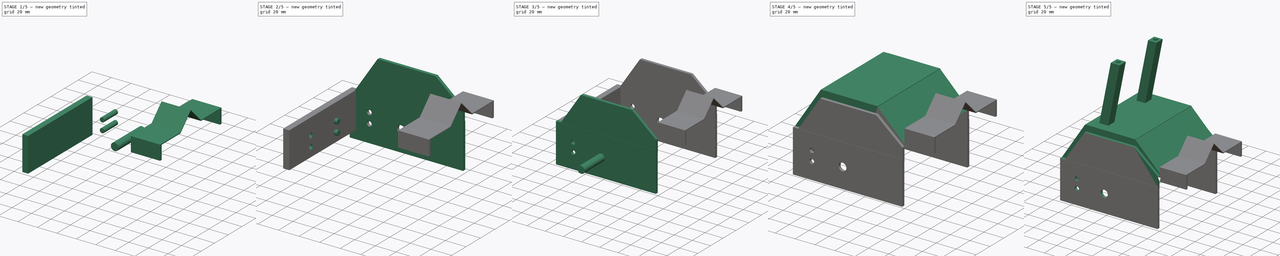
[diagram: build sequence overview — one tinted view per stage of 5, left to right]
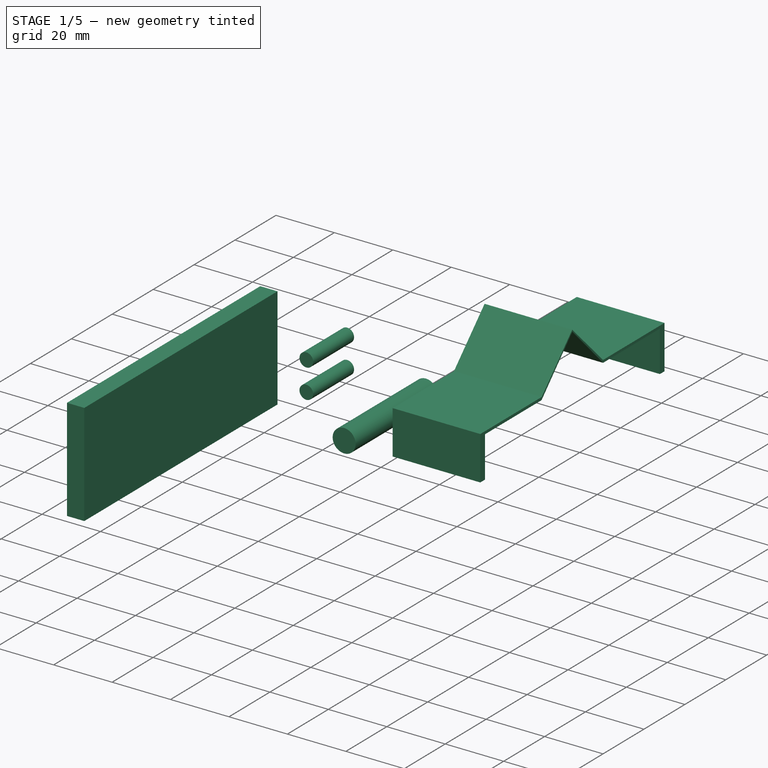
[diagram: stage 1 of 5 — iso view after this stage's code; geometry added in this stage tinted green]
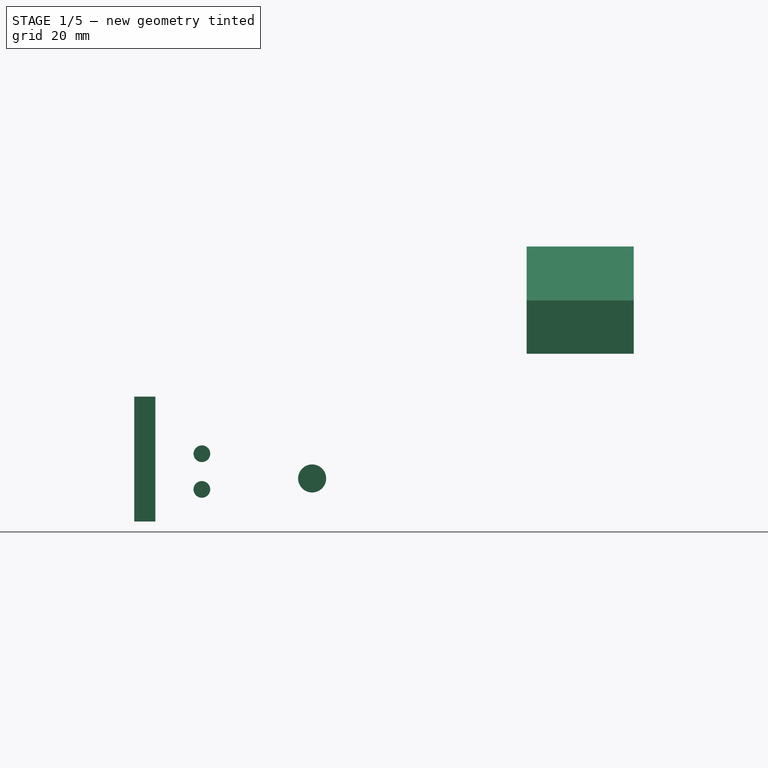
[diagram: stage 1 of 5 — front view after this stage's code; geometry added in this stage tinted green]
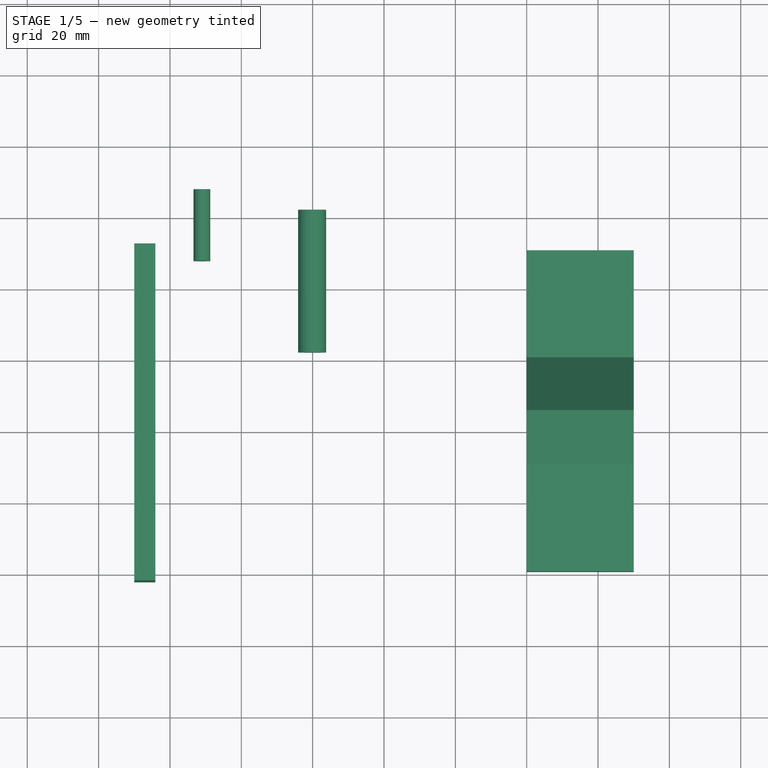
[diagram: stage 1 of 5 — top view after this stage's code; geometry added in this stage tinted green]
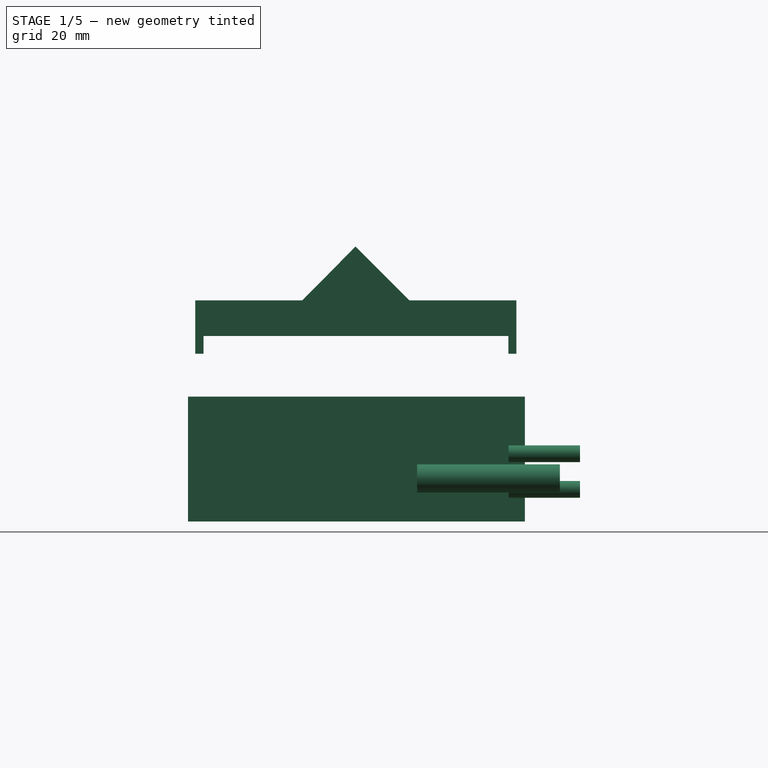
[diagram: stage 1 of 5 — right view after this stage's code; geometry added in this stage tinted green]
FCSTD DOCUMENT  (FreeCAD 0.20R29410 (Git))
Label: Carcasa Trasera
License: Creative Commons Attribution-ShareAlike
LicenseURL: http://creativecommons.org/licenses/by-sa/4.0/
objects: Part::Extrusion×21, Sketcher::SketchObject×20, Part::MultiFuse×10, Part::Cut×10
note: 61 computed .brp shape members not serialized (recipe doc carries the construction recipe); baked Part::Feature solids carry a one-line shape summary decoded from their .brp

FEATURE [Sketcher::SketchObject] Sketch134
  FullyConstrained = false
  MapMode = 5
  Placement = pos=(0,0,8) rot=(0,0,1;0rad)
  sketch-geometry (4):
    g0: LineSegment StartX=-110 StartY=92.3912 StartZ=0 EndX=-110 EndY=-2.04587 EndZ=0
    g1: LineSegment StartX=-110 StartY=-2.04587 StartZ=0 EndX=-104.089 EndY=-2.04587 EndZ=0
    g2: LineSegment StartX=-104.089 StartY=-2.04587 StartZ=0 EndX=-104.089 EndY=92.3912 EndZ=0
    g3: LineSegment StartX=-104.089 StartY=92.3912 StartZ=0 EndX=-110 EndY=92.3912 EndZ=0
  constraints (7):
    c: Vertical(g0)
    c: Coincident(g0,g1)
    c: Coincident(g1,g2)
    c: Vertical(g2)
    c: Coincident(g2,g3)
    c: Coincident(g3,g0)
    c: Horizontal(g3)
FEATURE [Part::Extrusion] Extrude156
  Base = -> Sketch134
  Dir = (0,0,1)
  DirMode = 2
  FaceMakerClass = Part::FaceMakerBullseye
  LengthFwd = 35
  LengthRev = 0
  Solid = true
  Symmetric = false
FEATURE [Sketcher::SketchObject] Sketch143
  FullyConstrained = false
  MapMode = 5
  Placement = pos=(-98,-107,4e-16) rot=(0.57735,-0.57735,-0.57735;2.0944rad)
  sketch-geometry (4):
    g0: LineSegment StartX=-140.012 StartY=30 StartZ=0 EndX=-130 EndY=30 EndZ=0
    g1: Circle CenterX=-135.006 CenterY=30 CenterZ=0 NormalX=0 NormalY=0 NormalZ=1 AngleXU=0 Radius=2.34
    g2: LineSegment StartX=-140 StartY=20 StartZ=0 EndX=-130.017 EndY=20 EndZ=0
    g3: Circle CenterX=-135.008 CenterY=20 CenterZ=0 NormalX=0 NormalY=0 NormalZ=1 AngleXU=0 Radius=2.34
  constraints (6):
    c: Horizontal(g0)
    c: Symmetric(g0,g0,g1)
    c: Horizontal(g2)
    c: Symmetric(g2,g2,g3)
    c: Equal(g1,g3)
    c: Diameter(g3) = 4.68
FEATURE [Part::Extrusion] Extrude167  label="Tornillos040"
  Base = -> Sketch143
  Dir = (-1,2e-16,2e-16)
  DirMode = 2
  FaceMakerClass = Part::FaceMakerBullseye
  LengthFwd = 20
  LengthRev = 0
  Placement = pos=(-63.05,205.85,-3) rot=(0,0,1;1.5708rad)
  Solid = true
  Symmetric = false
FEATURE [Sketcher::SketchObject] Sketch147
  FullyConstrained = false
  MapMode = 5
  Placement = pos=(-4e-15,-17.4,11) rot=(0,0.707107,0.707107;3.14159rad)
  sketch-geometry (1):
    g0: Circle CenterX=0 CenterY=-11.0274 CenterZ=0 NormalX=0 NormalY=0 NormalZ=1 AngleXU=0 Radius=3.93177
FEATURE [Part::Extrusion] Extrude169  label="Pieza Clave motor010"
  Base = -> Sketch147
  Dir = (0,1,-2e-16)
  DirMode = 2
  FaceMakerClass = Part::FaceMakerBullseye
  LengthFwd = 40
  LengthRev = 0
  Placement = pos=(-60.175,79.6,20.0694) rot=(0,-1,0;1.5708rad)
  Solid = true
  Symmetric = false
FEATURE [Sketcher::SketchObject] Sketch148
  FullyConstrained = false
  MapMode = 5
  Placement = pos=(0,0,30) rot=(0,0,1;0rad)
  sketch-geometry (8):
    g0: LineSegment StartX=0 StartY=90 StartZ=0 EndX=30 EndY=90 EndZ=0
    g1: LineSegment StartX=30 StartY=90 StartZ=0 EndX=30 EndY=87.7792 EndZ=0
    g2: LineSegment StartX=30 StartY=87.7792 StartZ=0 EndX=0 EndY=87.7792 EndZ=0
    g3: LineSegment StartX=0 StartY=87.7792 StartZ=0 EndX=0 EndY=90 EndZ=0
    g4: LineSegment StartX=0 StartY=0 StartZ=0 EndX=0 EndY=2.31108 EndZ=0
    g5: LineSegment StartX=0 StartY=2.31108 StartZ=0 EndX=30 EndY=2.31108 EndZ=0
    g6: LineSegment StartX=30 StartY=2.31108 StartZ=0 EndX=30 EndY=0 EndZ=0
    g7: LineSegment StartX=30 StartY=0 StartZ=0 EndX=0 EndY=0 EndZ=0
  constraints (18):
    c: PointOnObject(g0,g-2)
    c: Horizontal(g0)
    c: Coincident(g0,g1)
    c: Vertical(g1)
    c: Coincident(g1,g2)
    c: PointOnObject(g2,g-2)
    c: Horizontal(g2)
    c: Coincident(g2,g3)
    c: Coincident(g3,g0)
    c: Coincident(g-1,g4)
    c: PointOnObject(g4,g-2)
    c: Coincident(g4,g5)
    c: Horizontal(g5)
    c: Coincident(g5,g6)
    c: PointOnObject(g6,g-1)
    c: Vertical(g6)
    c: Coincident(g6,g7)
    c: Coincident(g7,g4)
FEATURE [Part::Extrusion] Extrude170
  Base = -> Sketch148
  Dir = (0,0,1)
  DirMode = 2
  FaceMakerClass = Part::FaceMakerBullseye
  LengthFwd = 7
  LengthRev = 0
  Placement = pos=(0,0,25.02) rot=(0,0,1;0rad)
  Solid = true
  Symmetric = false
FEATURE [Sketcher::SketchObject] Sketch152
  FullyConstrained = false
  Placement = pos=(0,0,0) rot=(0.57735,0.57735,0.57735;2.0944rad)
  sketch-geometry (7):
    g0: LineSegment StartX=90 StartY=60 StartZ=0 EndX=90 EndY=70 EndZ=0
    g1: LineSegment StartX=90 StartY=70 StartZ=0 EndX=60 EndY=70 EndZ=0
    g2: LineSegment StartX=60 StartY=70 StartZ=0 EndX=44.9387 EndY=85.0968 EndZ=0
    g3: LineSegment StartX=44.9387 StartY=85.0968 StartZ=0 EndX=30 EndY=70 EndZ=0
    g4: LineSegment StartX=30 StartY=70 StartZ=0 EndX=0 EndY=70 EndZ=0
    g5: LineSegment StartX=0 StartY=70 StartZ=0 EndX=0 EndY=60 EndZ=0
    g6: LineSegment StartX=0 StartY=60 StartZ=0 EndX=90 EndY=60 EndZ=0
  constraints (12):
    c: Vertical(g0)
    c: Coincident(g0,g1)
    c: Horizontal(g1)
    c: Coincident(g1,g2)
    c: Coincident(g2,g3)
    c: Coincident(g3,g4)
    c: PointOnObject(g4,g-2)
    c: Horizontal(g4)
    c: Coincident(g4,g5)
    c: PointOnObject(g5,g-2)
    c: Coincident(g5,g6)
    c: Horizontal(g6)
FEATURE [Part::Extrusion] Extrude173
  Base = -> Sketch152
  Dir = (1,0,0)
  DirMode = 2
  FaceMakerClass = Part::FaceMakerBullseye
  LengthFwd = 30
  LengthRev = 0
  Solid = true
  Symmetric = false
FEATURE [Sketcher::SketchObject] Sketch153
  FullyConstrained = false
  MapMode = 5
  Placement = pos=(30,0,0) rot=(0.57735,0.57735,0.57735;2.0944rad)
  Support = -> [Extrude173]
  sketch-geometry (8):
    g0: LineSegment StartX=2.27646 StartY=59.9596 StartZ=0 EndX=2.27646 EndY=69.0502 EndZ=0
    g1: LineSegment StartX=2.27646 StartY=69.0502 StartZ=0 EndX=29.9529 EndY=69.0502 EndZ=0
    g2: LineSegment StartX=29.9529 StartY=69.0502 StartZ=0 EndX=44.9522 EndY=84.4995 EndZ=0
    g3: LineSegment StartX=44.9522 StartY=84.4995 StartZ=0 EndX=59.9991 EndY=69.1078 EndZ=0
    g4: LineSegment StartX=59.9991 StartY=69.1078 StartZ=0 EndX=87.7781 EndY=69.1078 EndZ=0
    g5: LineSegment StartX=87.7781 StartY=69.1078 StartZ=0 EndX=87.7781 EndY=61.9714 EndZ=0
    g6: LineSegment StartX=87.7781 StartY=61.9714 StartZ=0 EndX=87.7781 EndY=59.9596 EndZ=0
    g7: LineSegment StartX=87.7781 StartY=59.9596 StartZ=0 EndX=2.27646 EndY=59.9596 EndZ=0
  constraints (14):
    c: Vertical(g0)
    c: Coincident(g0,g1)
    c: Horizontal(g1)
    c: Coincident(g1,g2)
    c: Coincident(g2,g3)
    c: Coincident(g3,g4)
    c: Horizontal(g4)
    c: Coincident(g4,g5)
    c: Vertical(g5)
    c: Coincident(g5,g6)
    c: Vertical(g6)
    c: Coincident(g6,g7)
    c: Coincident(g7,g0)
    c: Horizontal(g7)
FEATURE [Part::Extrusion] Extrude174
  Base = -> Sketch153
  Dir = (1,0,0)
  DirMode = 2
  FaceMakerClass = Part::FaceMakerBullseye
  LengthFwd = 30
  LengthRev = 0
  Placement = pos=(-29.9,0,0) rot=(0,0,1;0rad)
  Solid = true
  Symmetric = false
FEATURE [Part::Cut] Cut099
  Base = -> Extrude173
  Refine = true
  Tool = -> Extrude174
FEATURE [Part::MultiFuse] Fusion056
  Refine = true
  Shapes = -> [Cut099,Extrude170]
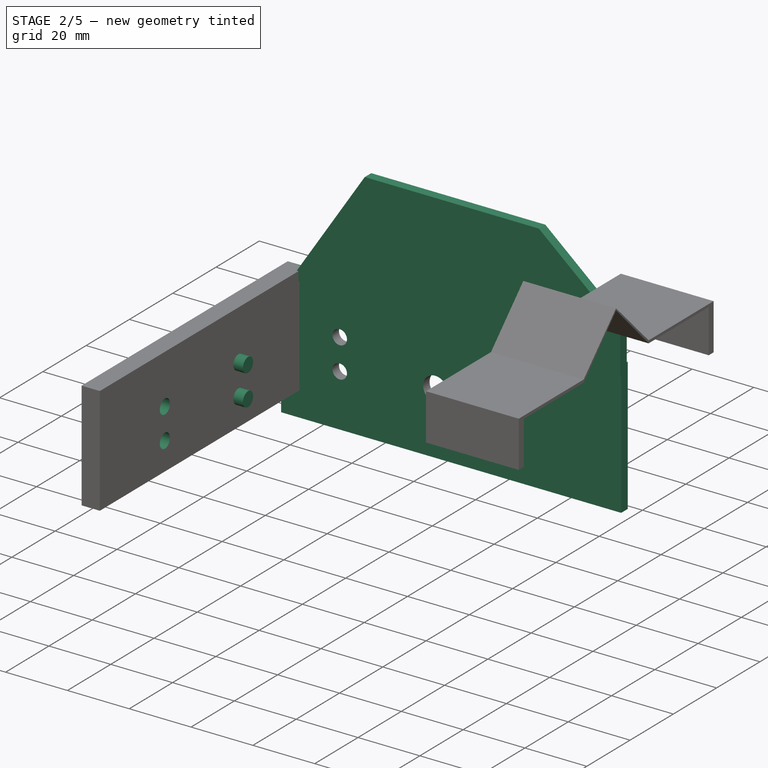
[diagram: stage 2 of 5 — iso view after this stage's code; geometry added in this stage tinted green]
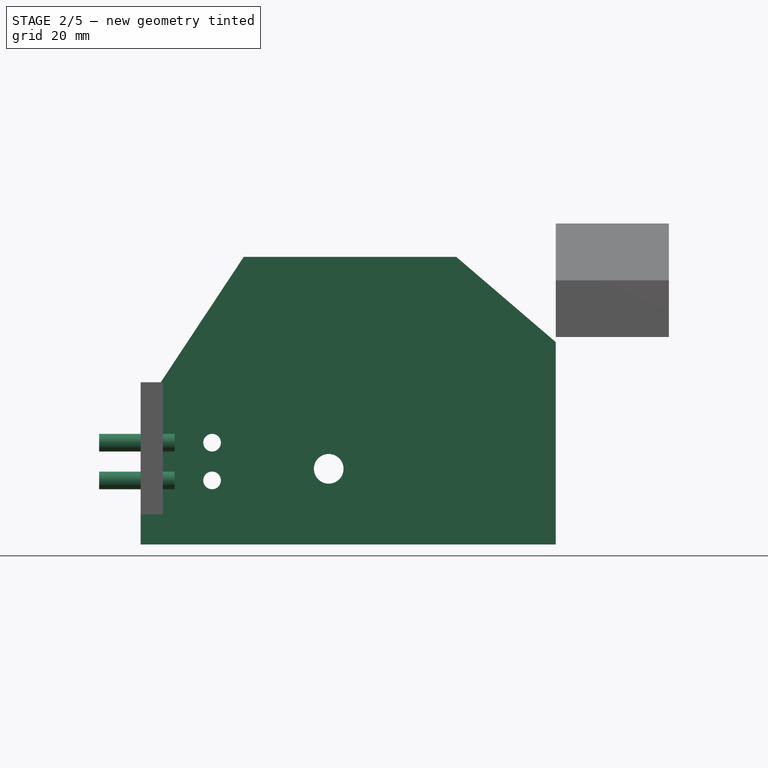
[diagram: stage 2 of 5 — front view after this stage's code; geometry added in this stage tinted green]
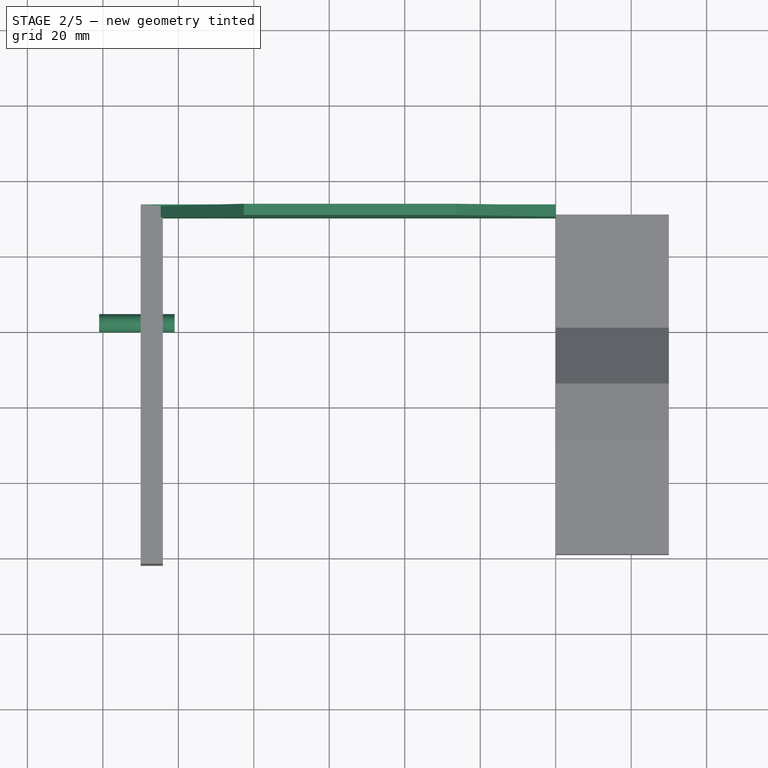
[diagram: stage 2 of 5 — top view after this stage's code; geometry added in this stage tinted green]
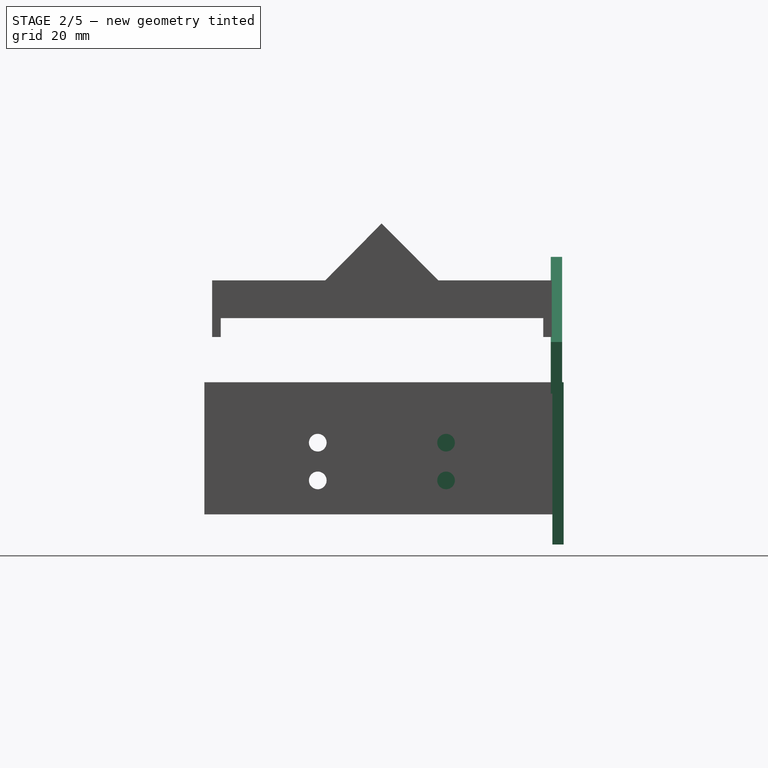
[diagram: stage 2 of 5 — right view after this stage's code; geometry added in this stage tinted green]
FEATURE [Sketcher::SketchObject] Sketch137
  FullyConstrained = false
  sketch-geometry (4):
    g0: LineSegment StartX=-110 StartY=90.9192 StartZ=0 EndX=0 EndY=90.9192 EndZ=0
    g1: LineSegment StartX=0 StartY=90.9192 StartZ=0 EndX=0 EndY=93.9192 EndZ=0
    g2: LineSegment StartX=0 StartY=93.9192 StartZ=0 EndX=-110 EndY=93.9192 EndZ=0
    g3: LineSegment StartX=-110 StartY=93.9192 StartZ=0 EndX=-110 EndY=90.9192 EndZ=0
  constraints (9):
    c: Coincident(g0,g1)
    c: Coincident(g1,g2)
    c: Coincident(g2,g3)
    c: Coincident(g3,g0)
    c: Horizontal(g0)
    c: Horizontal(g2)
    c: Vertical(g1)
    c: Vertical(g3)
    c: DistanceY(g3,g3) = 3
FEATURE [Part::Extrusion] Extrude158  label="Tapa lateral baja003"
  Base = -> Sketch137
  Dir = (0,0,1)
  DirMode = 2
  FaceMakerClass = Part::FaceMakerBullseye
  LengthFwd = 43
  LengthRev = 0
  Solid = true
  Symmetric = false
FEATURE [Sketcher::SketchObject] Sketch138
  FullyConstrained = false
  Placement = pos=(0,0,0) rot=(1,0,0;1.5708rad)
  sketch-geometry (6):
    g0: LineSegment StartX=-104.692 StartY=42.9568 StartZ=0 EndX=-82.6728 EndY=76.238 EndZ=0
    g1: LineSegment StartX=-82.6728 StartY=76.238 StartZ=0 EndX=-26.3532 EndY=76.238 EndZ=0
    g2: LineSegment StartX=-26.3532 StartY=76.238 StartZ=0 EndX=0 EndY=53.6679 EndZ=0
    g3: LineSegment StartX=0 StartY=53.6679 StartZ=0 EndX=0 EndY=40 EndZ=0
    g4: LineSegment StartX=0 StartY=40 StartZ=0 EndX=-104.974 EndY=40 EndZ=0
    g5: LineSegment StartX=-104.974 StartY=40 StartZ=0 EndX=-104.692 EndY=42.9568 EndZ=0
  constraints (10):
    c: Coincident(g0,g1)
    c: Horizontal(g1)
    c: Coincident(g1,g2)
    c: PointOnObject(g2,g-2)
    c: Coincident(g2,g3)
    c: PointOnObject(g3,g-2)
    c: Coincident(g3,g4)
    c: Horizontal(g4)
    c: Coincident(g4,g5)
    c: Coincident(g5,g0)
FEATURE [Part::Extrusion] Extrude159  label="Tapa lateral arriba002"
  Base = -> Sketch138
  Dir = (0,-1,2e-16)
  DirMode = 2
  FaceMakerClass = Part::FaceMakerBullseye
  LengthFwd = 3
  LengthRev = 0
  Placement = pos=(0,92.75,0) rot=(0,0,1;0rad)
  Solid = true
  Symmetric = false
FEATURE [Sketcher::SketchObject] Sketch141
  FullyConstrained = false
  MapMode = 5
  Placement = pos=(-101,-107,-1.1e-15) rot=(0.57735,-0.57735,-0.57735;2.0944rad)
  sketch-geometry (4):
    g0: LineSegment StartX=-140.012 StartY=30 StartZ=0 EndX=-130 EndY=30 EndZ=0
    g1: Circle CenterX=-135.006 CenterY=30 CenterZ=0 NormalX=0 NormalY=0 NormalZ=1 AngleXU=0 Radius=2.34
    g2: LineSegment StartX=-140 StartY=20 StartZ=0 EndX=-130.017 EndY=20 EndZ=0
    g3: Circle CenterX=-135.008 CenterY=20 CenterZ=0 NormalX=0 NormalY=0 NormalZ=1 AngleXU=0 Radius=2.34
  constraints (6):
    c: Horizontal(g0)
    c: Symmetric(g0,g0,g1)
    c: Horizontal(g2)
    c: Symmetric(g2,g2,g3)
    c: Equal(g1,g3)
    c: Diameter(g3) = 4.68
FEATURE [Part::Extrusion] Extrude162  label="Tornillos037"
  Base = -> Sketch141
  Dir = (-1,2e-16,-2e-16)
  DirMode = 2
  FaceMakerClass = Part::FaceMakerBullseye
  LengthFwd = 20
  LengthRev = 0
  Placement = pos=(0,0,-3) rot=(0,0,1;0rad)
  Solid = true
  Symmetric = false
FEATURE [Part::Cut] Cut092
  Base = -> Extrude156
  Refine = true
  Tool = -> Extrude162
FEATURE [Part::Extrusion] Extrude163  label="Tornillos038"
  Base = -> Sketch141
  Dir = (-1,2e-16,-2e-16)
  DirMode = 2
  FaceMakerClass = Part::FaceMakerBullseye
  LengthFwd = 20
  LengthRev = 0
  Placement = pos=(0,34,-3) rot=(0,0,1;0rad)
  Solid = true
  Symmetric = false
FEATURE [Part::Cut] Cut096
  Base = -> Extrude158
  Refine = true
  Tool = -> Extrude167
FEATURE [Part::Cut] Cut097
  Base = -> Cut096
  Placement = pos=(0,-0.75,0) rot=(0,0,1;0rad)
  Refine = true
  Tool = -> Extrude169
FEATURE [Part::MultiFuse] Fusion050
  Refine = true
  Shapes = -> [Extrude159,Cut097]
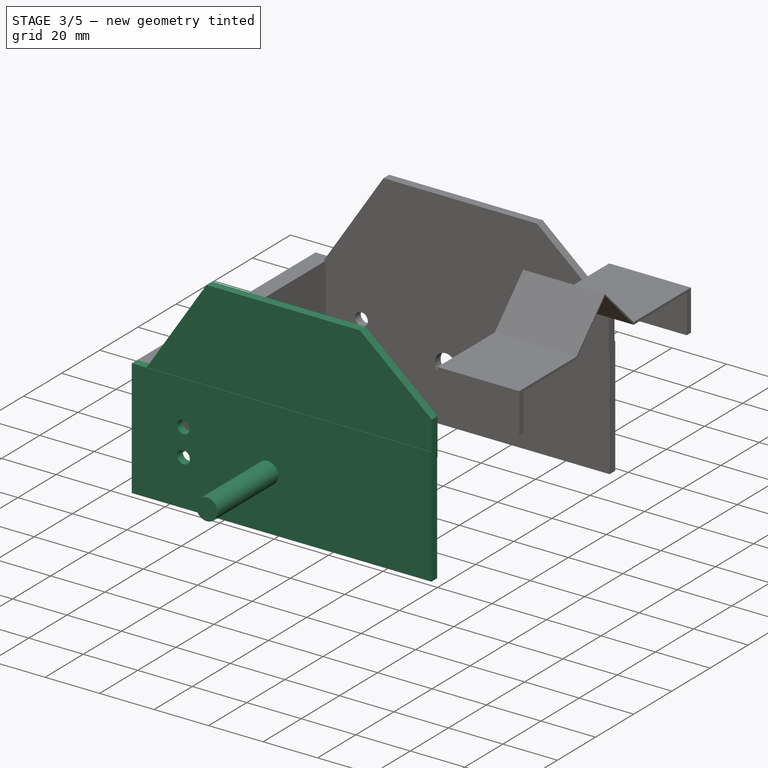
[diagram: stage 3 of 5 — iso view after this stage's code; geometry added in this stage tinted green]
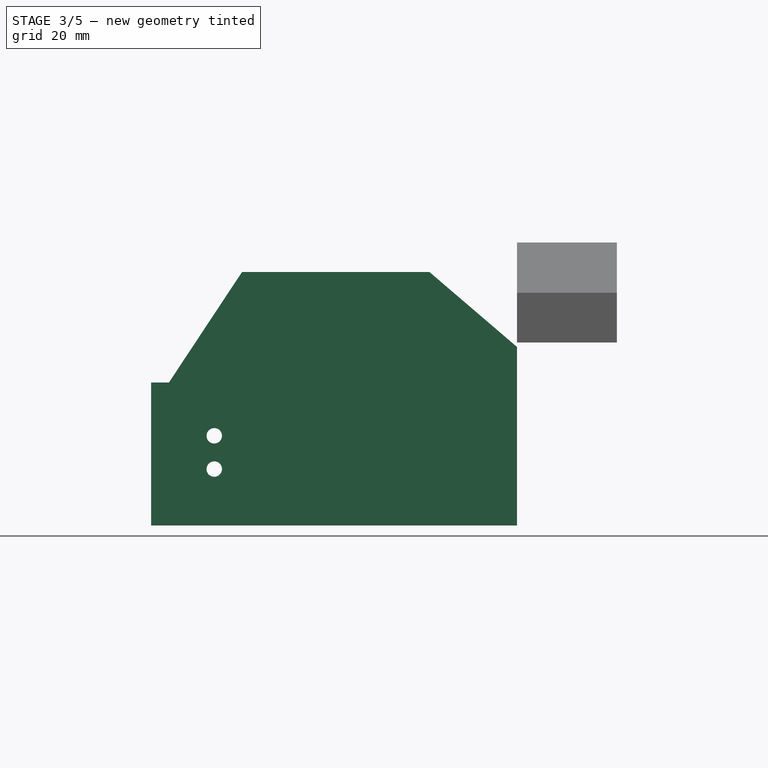
[diagram: stage 3 of 5 — front view after this stage's code; geometry added in this stage tinted green]
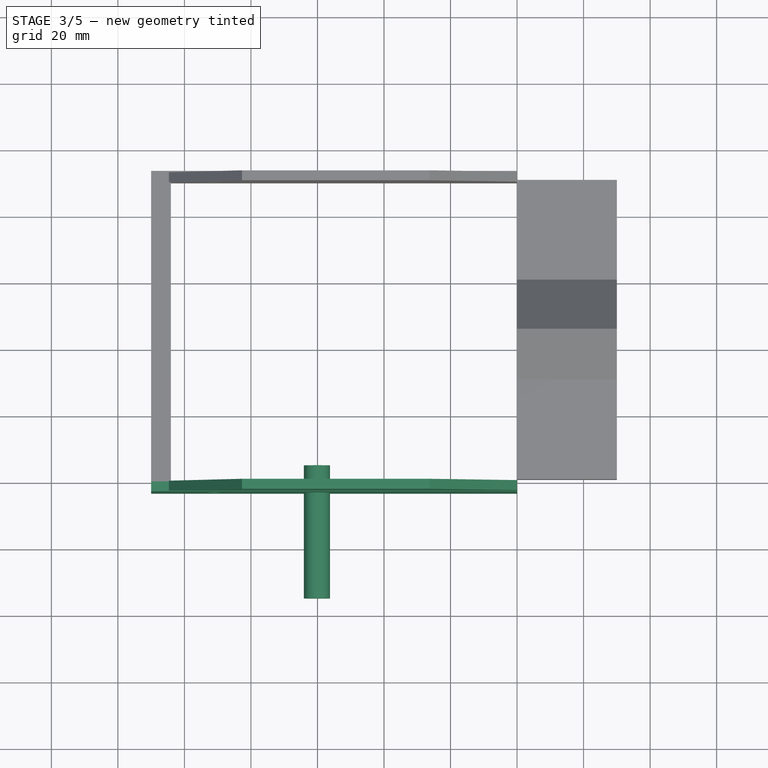
[diagram: stage 3 of 5 — top view after this stage's code; geometry added in this stage tinted green]
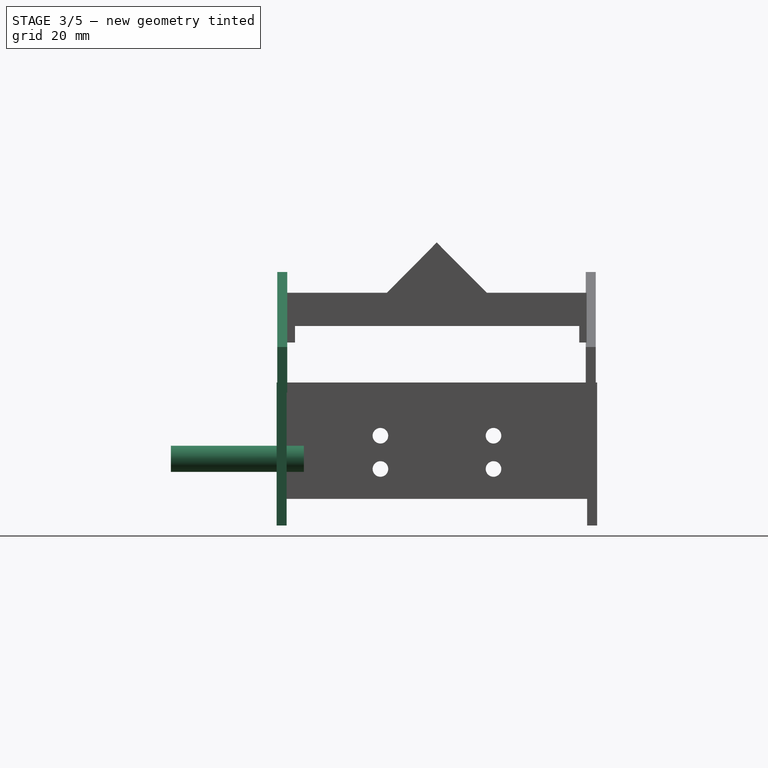
[diagram: stage 3 of 5 — right view after this stage's code; geometry added in this stage tinted green]
FEATURE [Sketcher::SketchObject] Sketch136
  FullyConstrained = false
  sketch-geometry (4):
    g0: LineSegment StartX=-110 StartY=90.8151 StartZ=0 EndX=0 EndY=90.8151 EndZ=0
    g1: LineSegment StartX=0 StartY=90.8151 StartZ=0 EndX=0 EndY=93.8151 EndZ=0
    g2: LineSegment StartX=0 StartY=93.8151 StartZ=0 EndX=-110 EndY=93.8151 EndZ=0
    g3: LineSegment StartX=-110 StartY=93.8151 StartZ=0 EndX=-110 EndY=90.8151 EndZ=0
  constraints (9):
    c: Coincident(g0,g1)
    c: Coincident(g1,g2)
    c: Coincident(g2,g3)
    c: Coincident(g3,g0)
    c: Horizontal(g0)
    c: Horizontal(g2)
    c: Vertical(g1)
    c: Vertical(g3)
    c: DistanceY(g3,g3) = 3
FEATURE [Part::Extrusion] Extrude157  label="Tapa lateral baja002"
  Base = -> Sketch136
  Dir = (0,0,1)
  DirMode = 2
  FaceMakerClass = Part::FaceMakerBullseye
  LengthFwd = 43
  LengthRev = 0
  Placement = pos=(0,-94,0) rot=(0,0,1;0rad)
  Solid = true
  Symmetric = false
FEATURE [Sketcher::SketchObject] Sketch139
  FullyConstrained = false
  Placement = pos=(0,0,0) rot=(1,0,0;1.5708rad)
  sketch-geometry (6):
    g0: LineSegment StartX=-104.692 StartY=42.9568 StartZ=0 EndX=-82.6728 EndY=76.238 EndZ=0
    g1: LineSegment StartX=-82.6728 StartY=76.238 StartZ=0 EndX=-26.3532 EndY=76.238 EndZ=0
    g2: LineSegment StartX=-26.3532 StartY=76.238 StartZ=0 EndX=0 EndY=53.6679 EndZ=0
    g3: LineSegment StartX=0 StartY=53.6679 StartZ=0 EndX=0 EndY=40 EndZ=0
    g4: LineSegment StartX=0 StartY=40 StartZ=0 EndX=-104.974 EndY=40 EndZ=0
    g5: LineSegment StartX=-104.974 StartY=40 StartZ=0 EndX=-104.692 EndY=42.9568 EndZ=0
  constraints (10):
    c: Coincident(g0,g1)
    c: Horizontal(g1)
    c: Coincident(g1,g2)
    c: PointOnObject(g2,g-2)
    c: Coincident(g2,g3)
    c: PointOnObject(g3,g-2)
    c: Coincident(g3,g4)
    c: Horizontal(g4)
    c: Coincident(g4,g5)
    c: Coincident(g5,g0)
FEATURE [Part::Extrusion] Extrude160  label="Tapa lateral arriba003"
  Base = -> Sketch139
  Dir = (0,-1,2e-16)
  DirMode = 2
  FaceMakerClass = Part::FaceMakerBullseye
  LengthFwd = 3
  LengthRev = 0
  Solid = true
  Symmetric = false
FEATURE [Part::Cut] Cut093
  Base = -> Cut092
  Refine = true
  Tool = -> Extrude163
FEATURE [Sketcher::SketchObject] Sketch144
  FullyConstrained = false
  MapMode = 5
  Placement = pos=(-4e-15,-17.4,11) rot=(0,0.707107,0.707107;3.14159rad)
  sketch-geometry (9):
    g0: LineSegment StartX=-1.905 StartY=-8.92242 StartZ=0 EndX=1.905 EndY=-8.92242 EndZ=0
    g1: LineSegment StartX=1.905 StartY=-8.92242 StartZ=0 EndX=1.905 EndY=-13.1324 EndZ=0
    g2: LineSegment StartX=1.905 StartY=-13.1324 StartZ=0 EndX=-1.905 EndY=-13.1324 EndZ=0
    g3: LineSegment StartX=-1.905 StartY=-13.1324 StartZ=0 EndX=-1.905 EndY=-8.92242 EndZ=0
    g4: LineSegment StartX=-1.905 StartY=-8.92242 StartZ=0 EndX=1.905 EndY=-13.1324 EndZ=0
    g5: LineSegment StartX=1.905 StartY=-8.92242 StartZ=0 EndX=-1.905 EndY=-13.1324 EndZ=0
    g6: GeomPoint X=-2.009e-13 Y=-11.0274 Z=0
    g7: ArcOfCircle CenterX=-2.009e-13 CenterY=-11.0274 CenterZ=0 NormalX=0 NormalY=0 NormalZ=1 AngleXU=0 Radius=2.83902 StartAngle=2.30636 EndAngle=3.97682
    g8: ArcOfCircle CenterX=-2.009e-13 CenterY=-11.0274 CenterZ=0 NormalX=0 NormalY=0 NormalZ=1 AngleXU=0 Radius=2.83902 StartAngle=5.44795 EndAngle=7.11842
  constraints (19):
    c: Coincident(g0,g1)
    c: Coincident(g1,g2)
    c: Horizontal(g2)
    c: Coincident(g2,g3)
    c: Coincident(g3,g0)
    c: Coincident(g4,g0)
    c: Coincident(g4,g2)
    c: Coincident(g5,g0)
    c: Coincident(g5,g2)
    c: Symmetric(g4,g4,g6)
    c: Symmetric(g0,g0,g-2)
    c: Coincident(g7,g6)
    c: Coincident(g7,g0)
    c: Coincident(g7,g2)
    c: Coincident(g8,g7)
    c: Coincident(g8,g2)
    c: Coincident(g8,g0)
    c: DistanceX(g0,g0) = 3.81
    c: DistanceY(g1,g1) = 4.21
FEATURE [Part::Extrusion] Extrude165  label="Pieza Clave motor008"
  Base = -> Sketch144
  Dir = (-3e-16,1,-2e-16)
  DirMode = 2
  FaceMakerClass = Part::FaceMakerBullseye
  LengthFwd = 40
  LengthRev = 0
  Placement = pos=(-60.175,0,20.0694) rot=(0,-1,0;1.5708rad)
  Solid = true
  Symmetric = false
FEATURE [Sketcher::SketchObject] Sketch145
  FullyConstrained = false
  MapMode = 5
  Placement = pos=(-98,-107,0) rot=(0.57735,-0.57735,-0.57735;2.0944rad)
  sketch-geometry (4):
    g0: LineSegment StartX=-140.012 StartY=30 StartZ=0 EndX=-130 EndY=30 EndZ=0
    g1: Circle CenterX=-135.006 CenterY=30 CenterZ=0 NormalX=0 NormalY=0 NormalZ=1 AngleXU=0 Radius=2.34
    g2: LineSegment StartX=-140 StartY=20 StartZ=0 EndX=-130.017 EndY=20 EndZ=0
    g3: Circle CenterX=-135.008 CenterY=20 CenterZ=0 NormalX=0 NormalY=0 NormalZ=1 AngleXU=0 Radius=2.34
  constraints (6):
    c: Horizontal(g0)
    c: Symmetric(g0,g0,g1)
    c: Horizontal(g2)
    c: Symmetric(g2,g2,g3)
    c: Equal(g1,g3)
    c: Diameter(g3) = 4.68
FEATURE [Part::Extrusion] Extrude166  label="Tornillos039"
  Base = -> Sketch145
  Dir = (-1,2e-16,2e-16)
  DirMode = 2
  FaceMakerClass = Part::FaceMakerBullseye
  LengthFwd = 20
  LengthRev = 0
  Placement = pos=(-63,105.5,-3.05) rot=(0,0,1;1.5708rad)
  Solid = true
  Symmetric = false
FEATURE [Part::Cut] Cut094
  Base = -> Extrude157
  Refine = true
  Tool = -> Extrude166
FEATURE [Part::Cut] Cut095
  Base = -> Cut094
  Refine = true
  Tool = -> Extrude165
FEATURE [Sketcher::SketchObject] Sketch146
  FullyConstrained = false
  MapMode = 5
  Placement = pos=(-4e-15,-17.4,11) rot=(0,0.707107,0.707107;3.14159rad)
  sketch-geometry (1):
    g0: Circle CenterX=0 CenterY=-11.0274 CenterZ=0 NormalX=0 NormalY=0 NormalZ=1 AngleXU=0 Radius=3.93177
FEATURE [Part::Extrusion] Extrude168  label="Pieza Clave motor009"
  Base = -> Sketch146
  Dir = (0,1,-2e-16)
  DirMode = 2
  FaceMakerClass = Part::FaceMakerBullseye
  LengthFwd = 40
  LengthRev = 0
  Placement = pos=(-60.175,-17.6,20.0694) rot=(0,-1,0;1.5708rad)
  Solid = true
  Symmetric = false
FEATURE [Part::MultiFuse] Fusion051
  Refine = true
  Shapes = -> [Cut093,Fusion050]
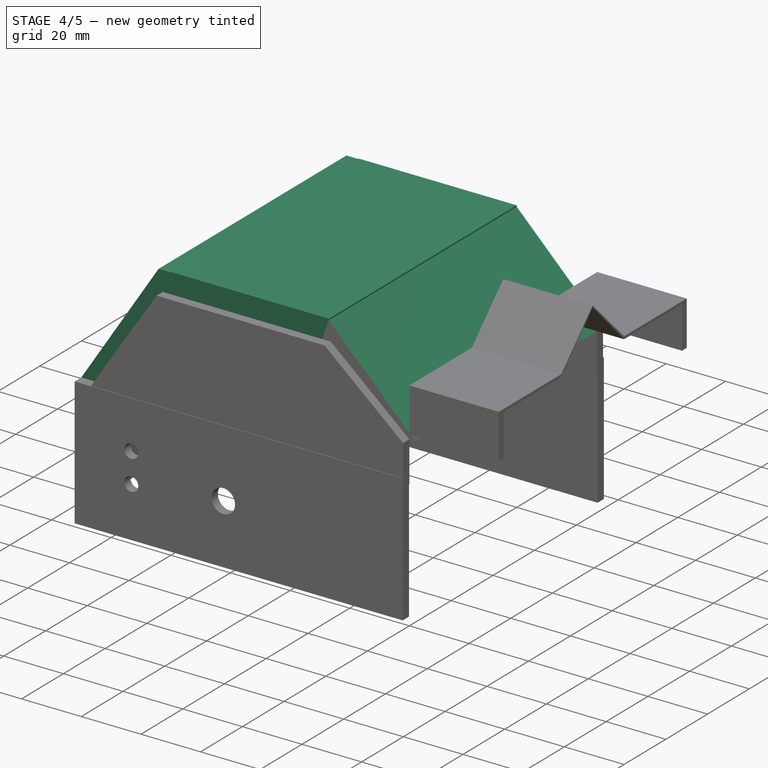
[diagram: stage 4 of 5 — iso view after this stage's code; geometry added in this stage tinted green]
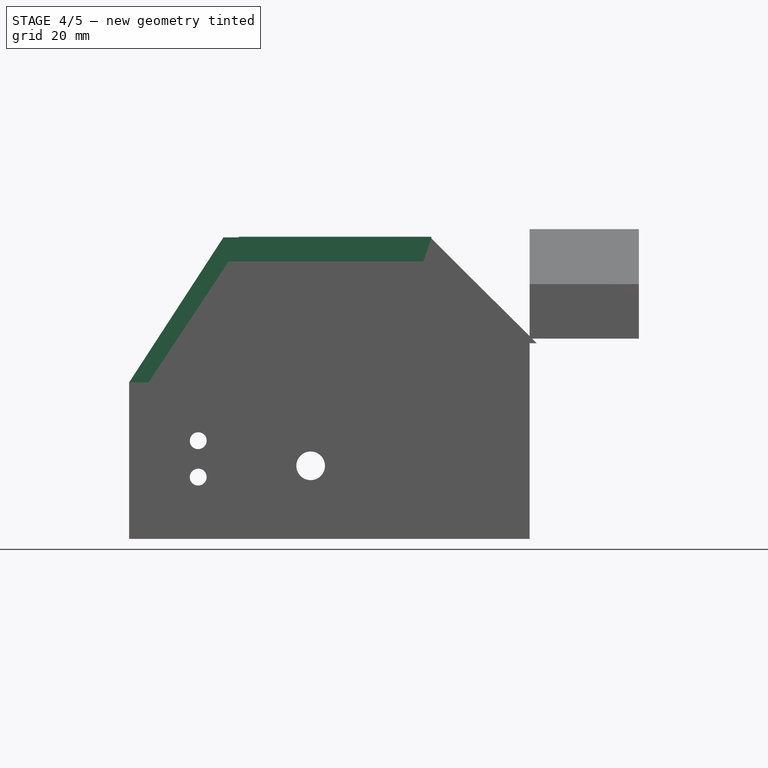
[diagram: stage 4 of 5 — front view after this stage's code; geometry added in this stage tinted green]
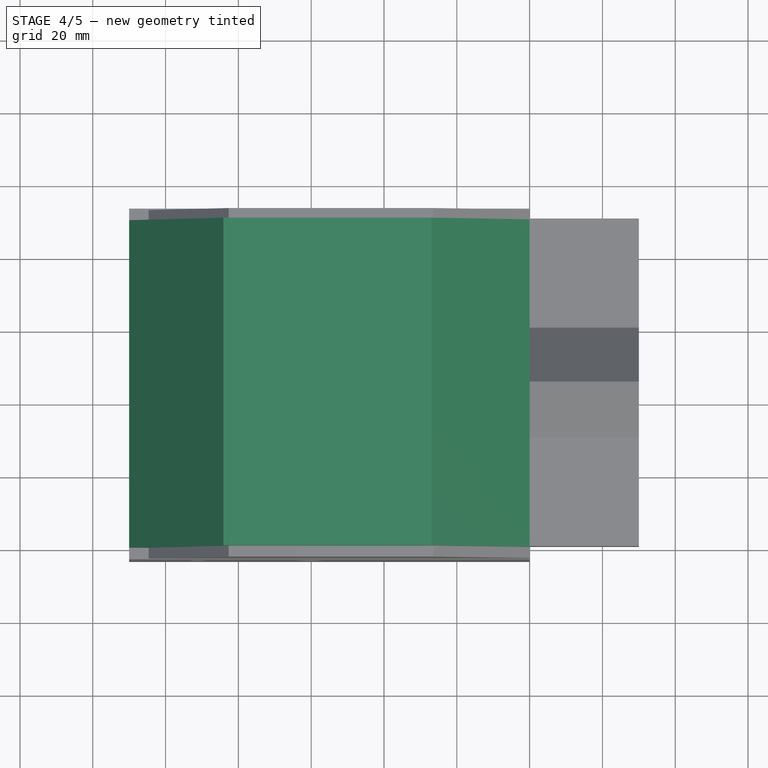
[diagram: stage 4 of 5 — top view after this stage's code; geometry added in this stage tinted green]
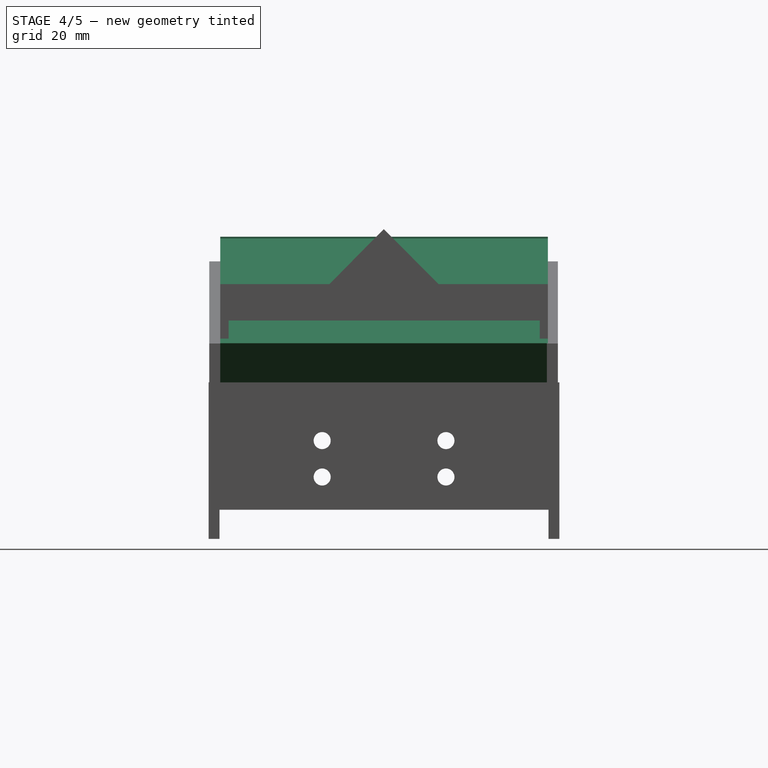
[diagram: stage 4 of 5 — right view after this stage's code; geometry added in this stage tinted green]
FEATURE [Sketcher::SketchObject] Sketch132
  FullyConstrained = false
  sketch-geometry (4):
    g0: LineSegment StartX=-102.882 StartY=90 StartZ=0 EndX=-50 EndY=90 EndZ=0
    g1: LineSegment StartX=-50 StartY=90 StartZ=0 EndX=-50 EndY=0 EndZ=0
    g2: LineSegment StartX=-50 StartY=0 StartZ=0 EndX=-102.882 EndY=0 EndZ=0
    g3: LineSegment StartX=-102.882 StartY=0 StartZ=0 EndX=-102.882 EndY=90 EndZ=0
  constraints (9):
    c: Coincident(g0,g1)
    c: Coincident(g1,g2)
    c: Coincident(g2,g3)
    c: Coincident(g3,g0)
    c: Horizontal(g0)
    c: Horizontal(g2)
    c: Vertical(g1)
    c: Vertical(g3)
    c: PointOnObject(g1,g-1)
FEATURE [Part::Extrusion] Extrude029
  Base = -> Sketch132
  Dir = (0,0,1)
  DirMode = 2
  FaceMakerClass = Part::FaceMakerBullseye
  LengthFwd = 8
  LengthRev = 0
  Placement = pos=(23,0,75) rot=(0,0,1;0rad)
  Solid = true
  Symmetric = false
FEATURE [Sketcher::SketchObject] Sketch133
  FullyConstrained = false
  Placement = pos=(0,0,0) rot=(1,0,0;1.5708rad)
  sketch-geometry (4):
    g0: LineSegment StartX=-27.4308 StartY=82.9646 StartZ=0 EndX=1.97129 EndY=53.7327 EndZ=0
    g1: LineSegment StartX=1.97129 StartY=53.7327 StartZ=0 EndX=-7.94359 EndY=53.7327 EndZ=0
    g2: LineSegment StartX=-7.94359 StartY=53.7327 StartZ=0 EndX=-32.0463 EndY=77.3233 EndZ=0
    g3: LineSegment StartX=-32.0463 StartY=77.3233 StartZ=0 EndX=-27.4308 EndY=82.9646 EndZ=0
  constraints (5):
    c: Coincident(g0,g1)
    c: Horizontal(g1)
    c: Coincident(g1,g2)
    c: Coincident(g2,g3)
    c: Coincident(g3,g0)
FEATURE [Part::Extrusion] Extrude030
  Base = -> Sketch133
  Dir = (0,-1,2e-16)
  DirMode = 2
  FaceMakerClass = Part::FaceMakerBullseye
  LengthFwd = 10
  LengthRev = 80
  Placement = pos=(0,10,0) rot=(0,0,1;0rad)
  Solid = true
  Symmetric = false
FEATURE [Part::MultiFuse] Fusion003  label="MODIFICAR"
  Refine = true
  Shapes = -> [Extrude029,Extrude030]
FEATURE [Sketcher::SketchObject] Sketch135
  FullyConstrained = false
  MapMode = 5
  Placement = pos=(0,0,43) rot=(0,0,1;0rad)
  Support = -> [Extrude156]
  sketch-geometry (4):
    g0: LineSegment StartX=-110 StartY=90 StartZ=0 EndX=-100 EndY=90 EndZ=0
    g1: LineSegment StartX=-100 StartY=90 StartZ=0 EndX=-100 EndY=0 EndZ=0
    g2: LineSegment StartX=-100 StartY=0 StartZ=0 EndX=-110 EndY=0 EndZ=0
    g3: LineSegment StartX=-110 StartY=0 StartZ=0 EndX=-110 EndY=90 EndZ=0
  constraints (8):
    c: Coincident(g0,g1)
    c: Coincident(g1,g2)
    c: Coincident(g2,g3)
    c: Coincident(g3,g0)
    c: Horizontal(g0)
    c: Horizontal(g2)
    c: Vertical(g1)
    c: Vertical(g3)
FEATURE [Part::Extrusion] Extrude032  label="Tapa trasera arriba"
  Base = -> Sketch135
  Dir = (0.65,0,1)
  DirMode = 0
  FaceMakerClass = Part::FaceMakerBullseye
  LengthFwd = 47.5
  LengthRev = 0
  Solid = true
  Symmetric = false
FEATURE [Part::Cut] Cut098
  Base = -> Cut095
  Refine = true
  Tool = -> Extrude168
FEATURE [Part::MultiFuse] Fusion049
  Refine = true
  Shapes = -> [Extrude160,Cut098]
FEATURE [Part::MultiFuse] Fusion052
  Refine = true
  Shapes = -> [Fusion049,Fusion051]
FEATURE [Part::MultiFuse] Fusion053
  Refine = true
  Shapes = -> [Fusion052,Extrude032]
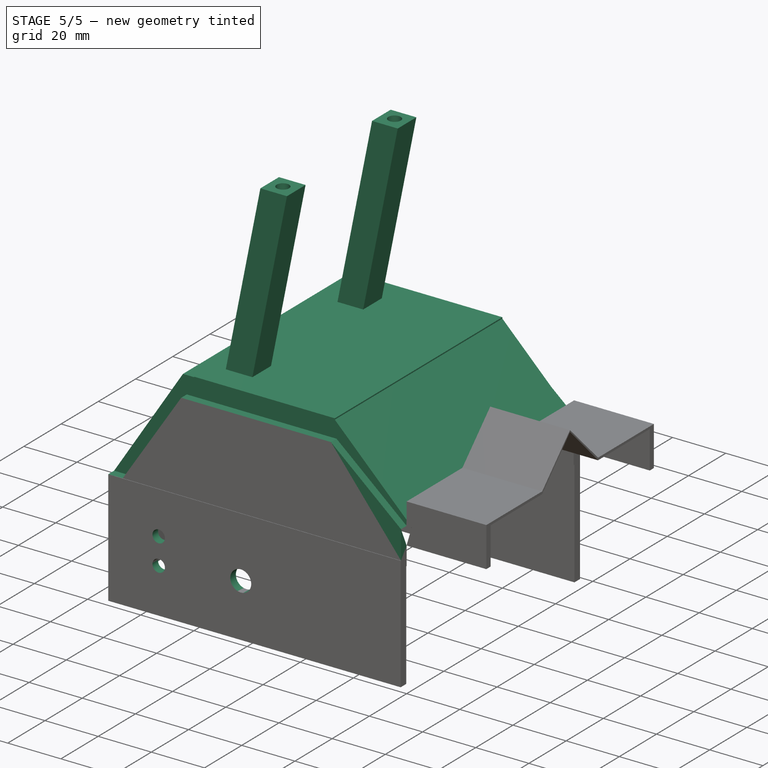
[diagram: stage 5 of 5 — iso view after this stage's code; geometry added in this stage tinted green]
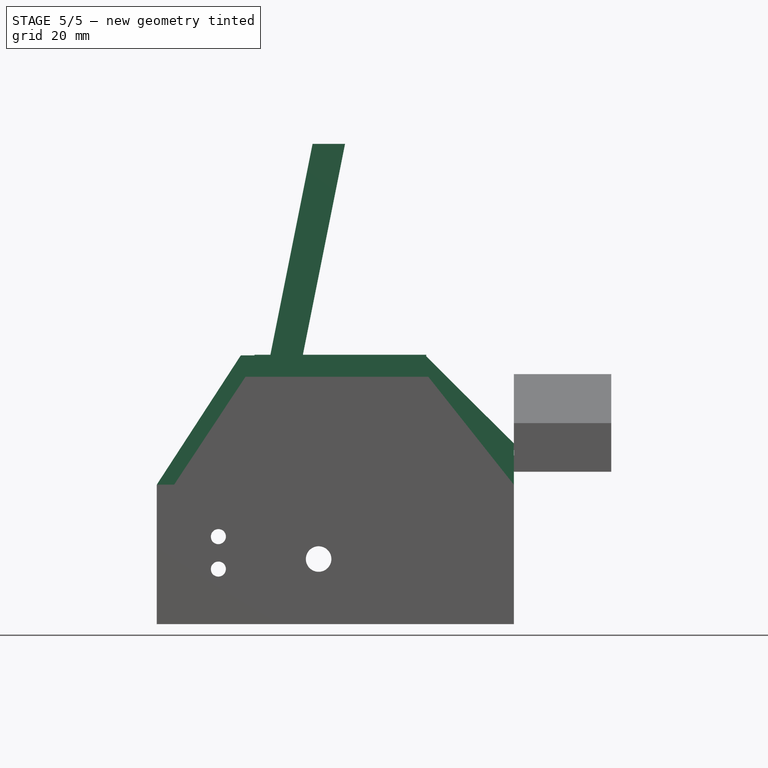
[diagram: stage 5 of 5 — front view after this stage's code; geometry added in this stage tinted green]
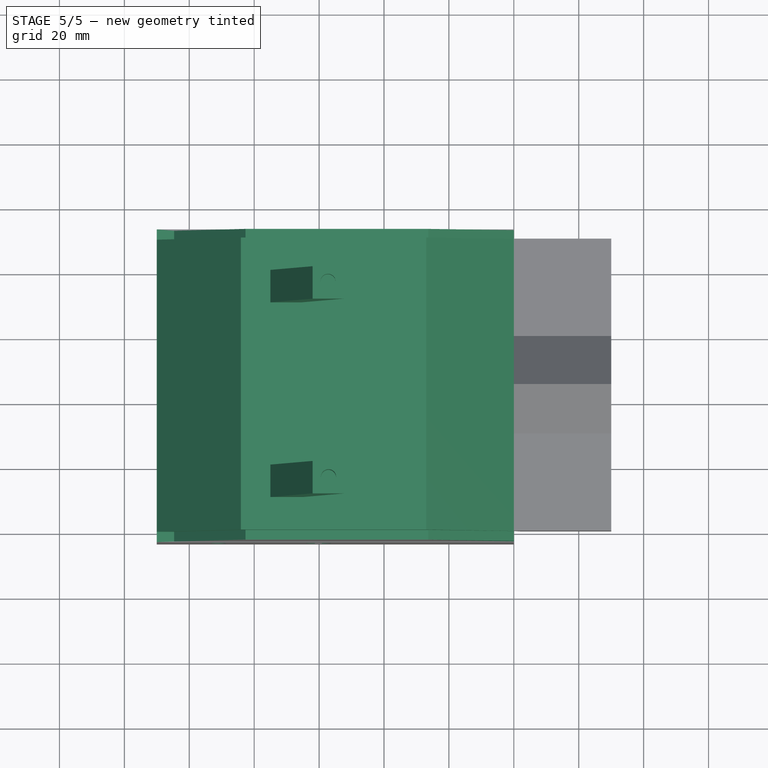
[diagram: stage 5 of 5 — top view after this stage's code; geometry added in this stage tinted green]
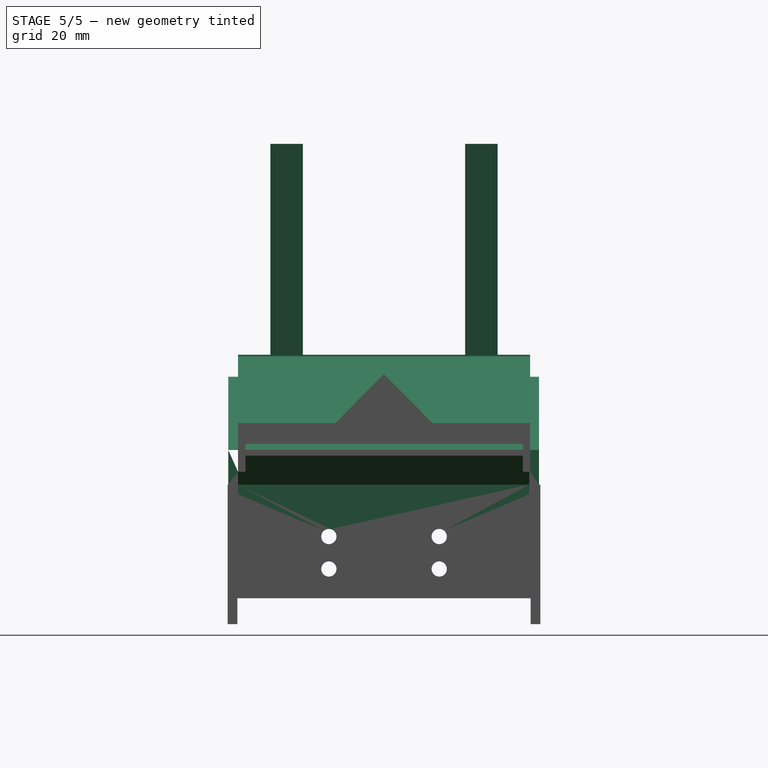
[diagram: stage 5 of 5 — right view after this stage's code; geometry added in this stage tinted green]
FEATURE [Sketcher::SketchObject] Sketch131
  FullyConstrained = false
  MapMode = 5
  Placement = pos=(24,0,148) rot=(1,0,0;3.14159rad)
  sketch-geometry (8):
    g0: LineSegment StartX=-80 StartY=-20 StartZ=0 EndX=-90 EndY=-20 EndZ=0
    g1: LineSegment StartX=-90 StartY=-70 StartZ=0 EndX=-80.3419 EndY=-70 EndZ=0
    g2: LineSegment StartX=-80.3419 StartY=-70 StartZ=0 EndX=-80.3419 EndY=-80 EndZ=0
    g3: LineSegment StartX=-80.3419 StartY=-80 StartZ=0 EndX=-90 EndY=-80 EndZ=0
    g4: LineSegment StartX=-90 StartY=-80 StartZ=0 EndX=-90 EndY=-70 EndZ=0
    g5: LineSegment StartX=-90 StartY=-20 StartZ=0 EndX=-90 EndY=-10 EndZ=0
    g6: LineSegment StartX=-80 StartY=-10 StartZ=0 EndX=-80 EndY=-20 EndZ=0
    g7: LineSegment StartX=-90 StartY=-10 StartZ=0 EndX=-80 EndY=-10 EndZ=0
  constraints (15):
    c: Horizontal(g0)
    c: Coincident(g1,g2)
    c: Coincident(g2,g3)
    c: Coincident(g3,g4)
    c: Coincident(g4,g1)
    c: Horizontal(g1)
    c: Horizontal(g3)
    c: Vertical(g2)
    c: Vertical(g4)
    c: Vertical(g5)
    c: Coincident(g6,g0)
    c: Vertical(g6)
    c: Coincident(g5,g7)
    c: Coincident(g7,g6)
    c: Horizontal(g7)
FEATURE [Part::Extrusion] Extrude155
  Base = -> Sketch131
  Dir = (-0.2,0,-1)
  DirMode = 0
  FaceMakerClass = Part::FaceMakerBullseye
  LengthFwd = 70
  LengthRev = 0
  Placement = pos=(4,0,0) rot=(0,0,1;0rad)
  Solid = true
  Symmetric = false
FEATURE [Part::MultiFuse] Fusion054
  Refine = true
  Shapes = -> [Fusion053,Fusion003]
FEATURE [Part::MultiFuse] Fusion055
  Placement = pos=(0,0,8.05) rot=(0,0,1;0rad)
  Refine = true
  Shapes = -> [Fusion054,Extrude155]
FEATURE [Part::MultiFuse] Fusion057
  Refine = true
  Shapes = -> [Fusion056,Fusion055]
FEATURE [Sketcher::SketchObject] Sketch158
  FullyConstrained = false
  MapMode = 5
  Placement = pos=(-98,-107,0) rot=(0.57735,-0.57735,-0.57735;2.0944rad)
  sketch-geometry (3):
    g0: LineSegment StartX=-140.012 StartY=30 StartZ=0 EndX=-130 EndY=30 EndZ=0
    g1: Circle CenterX=-135.006 CenterY=30 CenterZ=0 NormalX=0 NormalY=0 NormalZ=1 AngleXU=0 Radius=2.34
    g2: LineSegment StartX=-140 StartY=20 StartZ=0 EndX=-130.017 EndY=20 EndZ=0
  constraints (3):
    c: Horizontal(g0)
    c: Symmetric(g0,g0,g1)
    c: Horizontal(g2)
FEATURE [Part::Extrusion] Extrude179  label="Tornillos045"
  Base = -> Sketch158
  Dir = (-1,2e-16,2e-16)
  DirMode = 2
  FaceMakerClass = Part::FaceMakerBullseye
  LengthFwd = 20
  LengthRev = 0
  Placement = pos=(-27.25,47.3,265.65) rot=(0,-1,0;1.5708rad)
  Solid = true
  Symmetric = false
FEATURE [Part::Cut] Cut104
  Base = -> Fusion057
  Refine = true
  Tool = -> Extrude179
FEATURE [Sketcher::SketchObject] Sketch159
  FullyConstrained = false
  MapMode = 5
  Placement = pos=(-98,-107,0) rot=(0.57735,-0.57735,-0.57735;2.0944rad)
  sketch-geometry (3):
    g0: LineSegment StartX=-140.012 StartY=30 StartZ=0 EndX=-130 EndY=30 EndZ=0
    g1: Circle CenterX=-135.006 CenterY=30 CenterZ=0 NormalX=0 NormalY=0 NormalZ=1 AngleXU=0 Radius=2.34
    g2: LineSegment StartX=-140 StartY=20 StartZ=0 EndX=-130.017 EndY=20 EndZ=0
  constraints (3):
    c: Horizontal(g0)
    c: Symmetric(g0,g0,g1)
    c: Horizontal(g2)
FEATURE [Part::Extrusion] Extrude180  label="Tornillos046"
  Base = -> Sketch159
  Dir = (-1,2e-16,2e-16)
  DirMode = 2
  FaceMakerClass = Part::FaceMakerBullseye
  LengthFwd = 20
  LengthRev = 0
  Placement = pos=(-27.1,-12.9,261.35) rot=(0,-1,0;1.5708rad)
  Solid = true
  Symmetric = false
FEATURE [Part::Cut] Cut105  label="Carcasa trasera"
  Base = -> Cut104
  Refine = true
  Tool = -> Extrude180
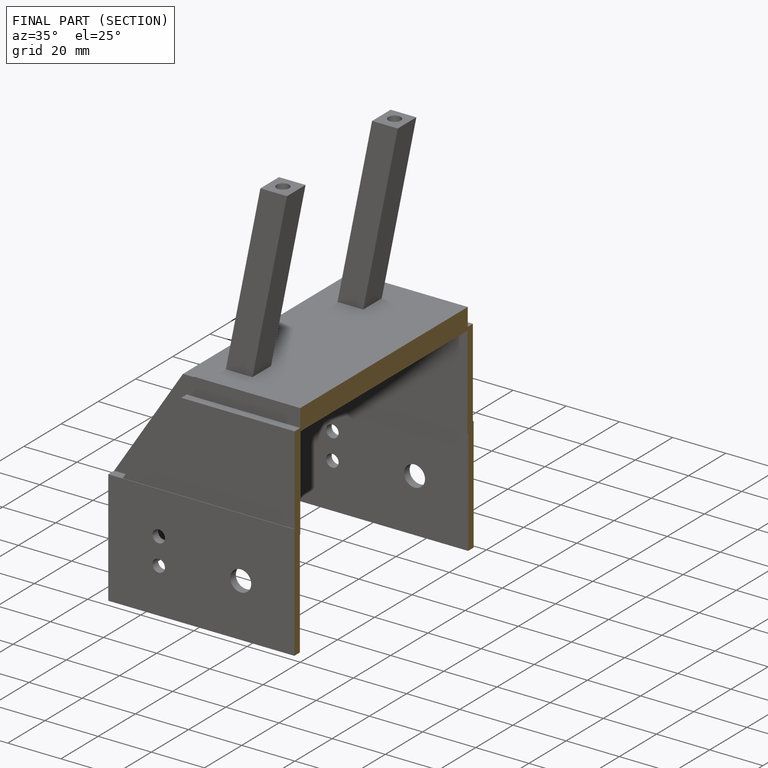
[diagram: finished part — half-section view (interior)]
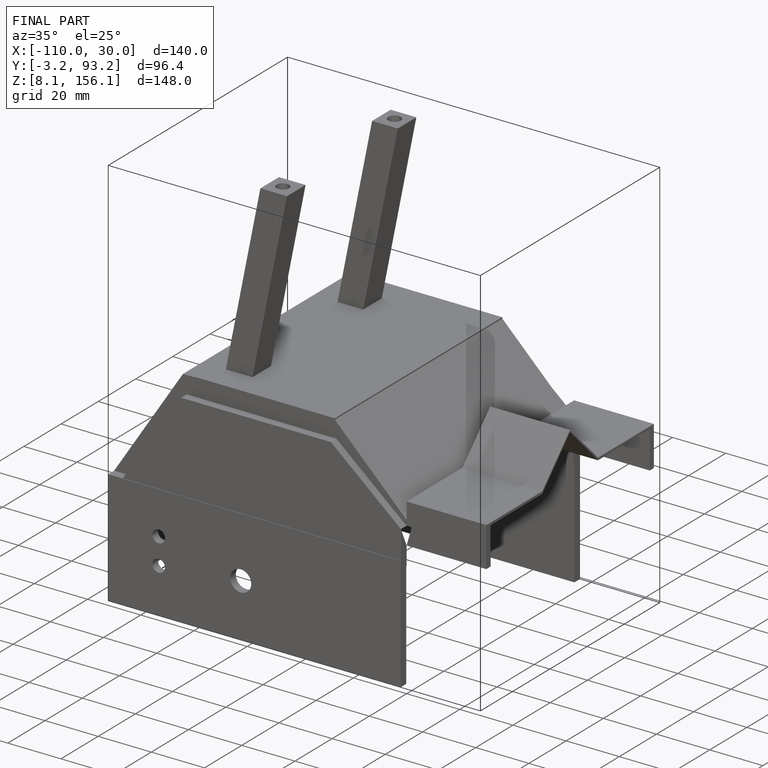
[diagram: finished part — iso view with bounding-box wireframe]
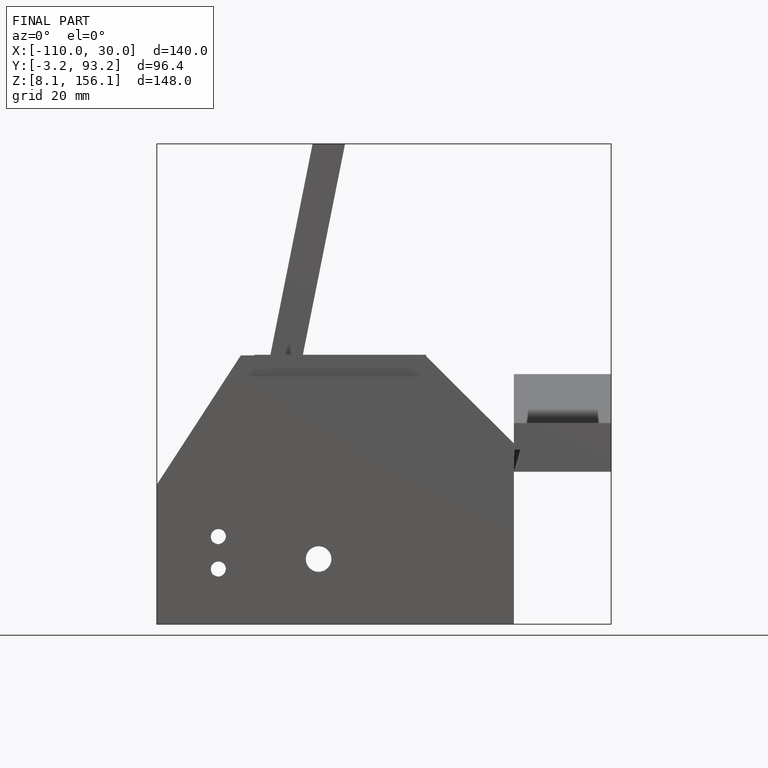
[diagram: finished part — front view with bounding-box wireframe]
